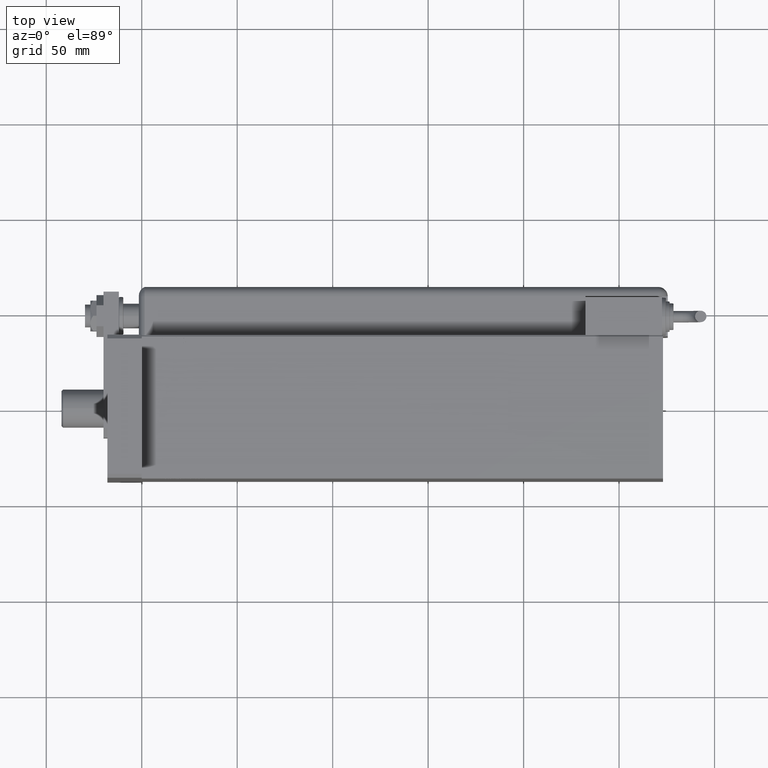
[diagram: clean part render]
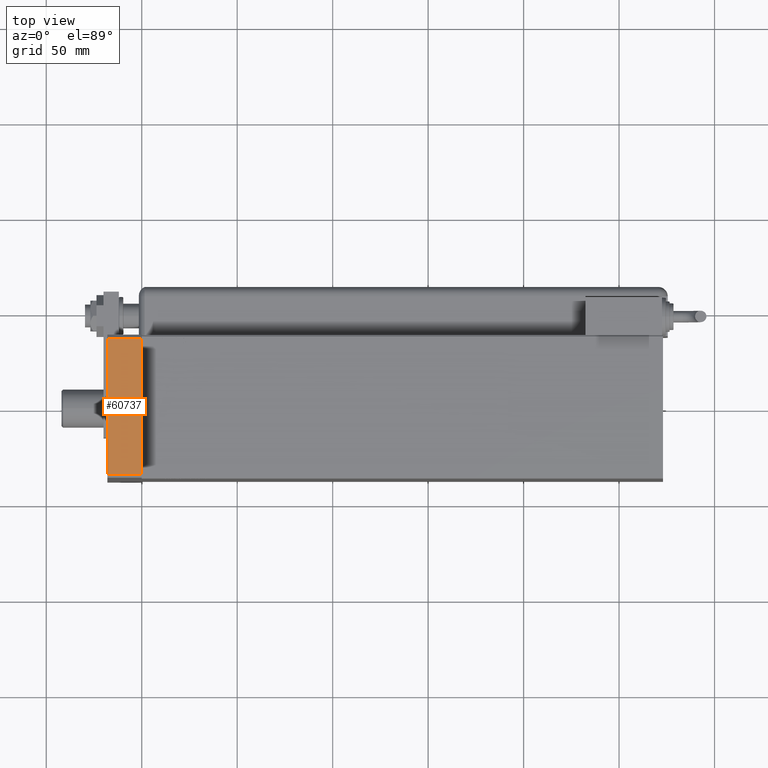
[diagram: same view with one face highlighted and labeled with its STEP entity id]
A machine part, top view. The second image highlights one B-rep face of the part: STEP entity #60737.
In plain terms, the highlighted planar face has unit normal (0, 0, -1).
Its self-contained STEP definition (entity closure, byte-faithful):
#1323 = VERTEX_POINT ( 'NONE', #49448 ) ;
#2982 = CARTESIAN_POINT ( 'NONE',  ( 74.99999999999998579, -35.49999999999997868, 18.00000000000000000 ) ) ;
#3285 = LINE ( 'NONE', #17194, #4377 ) ;
#3997 = CARTESIAN_POINT ( 'NONE',  ( 74.99999999999998579, 37.50000000000000711, 18.00000000000000000 ) ) ;
#4377 = VECTOR ( 'NONE', #36500, 1000.000000000000000 ) ;
#6612 = CARTESIAN_POINT ( 'NONE',  ( 74.99999999999998579, 37.50000000000000711, 18.00000000000000000 ) ) ;
#9209 = CARTESIAN_POINT ( 'NONE',  ( 74.99999999999998579, -35.49999999999997868, 0.000000000000000000 ) ) ;
#9574 = VECTOR ( 'NONE', #38765, 1000.000000000000000 ) ;
#9777 = VERTEX_POINT ( 'NONE', #9209 ) ;
#10001 = EDGE_CURVE ( 'NONE', #9777, #57608, #48733, .T. ) ;
#10724 = FACE_OUTER_BOUND ( 'NONE', #31145, .T. ) ;
#12504 = ORIENTED_EDGE ( 'NONE', *, *, #49497, .T. ) ;
#15388 = DIRECTION ( 'NONE',  ( 0.000000000000000000, 0.000000000000000000, 1.000000000000000000 ) ) ;
#16708 = DIRECTION ( 'NONE',  ( -1.000000000000000000, 0.000000000000000000, 0.000000000000000000 ) ) ;
#17194 = CARTESIAN_POINT ( 'NONE',  ( 74.99999999999998579, -35.49999999999997868, 18.00000000000000000 ) ) ;
#21433 = VERTEX_POINT ( 'NONE', #2982 ) ;
#22886 = AXIS2_PLACEMENT_3D ( 'NONE', #6612, #16708, #49630 ) ;
#23605 = LINE ( 'NONE', #3997, #9574 ) ;
#24274 = CARTESIAN_POINT ( 'NONE',  ( 74.99999999999998579, 35.49999999999996447, 18.00000000000000000 ) ) ;
#25316 = DIRECTION ( 'NONE',  ( -0.000000000000000000, 1.000000000000000000, -0.000000000000000000 ) ) ;
#29524 = VECTOR ( 'NONE', #25316, 1000.000000000000000 ) ;
#29741 = CARTESIAN_POINT ( 'NONE',  ( 74.99999999999998579, 37.50000000000000711, 0.000000000000000000 ) ) ;
#31145 = EDGE_LOOP ( 'NONE', ( #41767, #46811, #51218, #12504 ) ) ;
#32218 = CARTESIAN_POINT ( 'NONE',  ( 74.99999999999998579, 35.49999999999996447, 0.000000000000000000 ) ) ;
#36500 = DIRECTION ( 'NONE',  ( 0.000000000000000000, 0.000000000000000000, -1.000000000000000000 ) ) ;
#38765 = DIRECTION ( 'NONE',  ( -0.000000000000000000, 1.000000000000000000, -0.000000000000000000 ) ) ;
#40767 = PLANE ( 'NONE',  #22886 ) ;
#41136 = VECTOR ( 'NONE', #15388, 1000.000000000000000 ) ;
#41767 = ORIENTED_EDGE ( 'NONE', *, *, #10001, .T. ) ;
#46811 = ORIENTED_EDGE ( 'NONE', *, *, #61750, .T. ) ;
#48733 = LINE ( 'NONE', #29741, #29524 ) ;
#49448 = CARTESIAN_POINT ( 'NONE',  ( 74.99999999999998579, 35.49999999999996447, 18.00000000000000000 ) ) ;
#49497 = EDGE_CURVE ( 'NONE', #21433, #9777, #3285, .T. ) ;
#49630 = DIRECTION ( 'NONE',  ( 0.000000000000000000, 0.000000000000000000, 1.000000000000000000 ) ) ;
#51218 = ORIENTED_EDGE ( 'NONE', *, *, #52482, .F. ) ;
#52482 = EDGE_CURVE ( 'NONE', #21433, #1323, #23605, .T. ) ;
#57608 = VERTEX_POINT ( 'NONE', #32218 ) ;
#58091 = LINE ( 'NONE', #24274, #41136 ) ;
#60737 = ADVANCED_FACE ( 'NONE', ( #10724 ), #40767, .F. ) ;
#61750 = EDGE_CURVE ( 'NONE', #57608, #1323, #58091, .T. ) ;